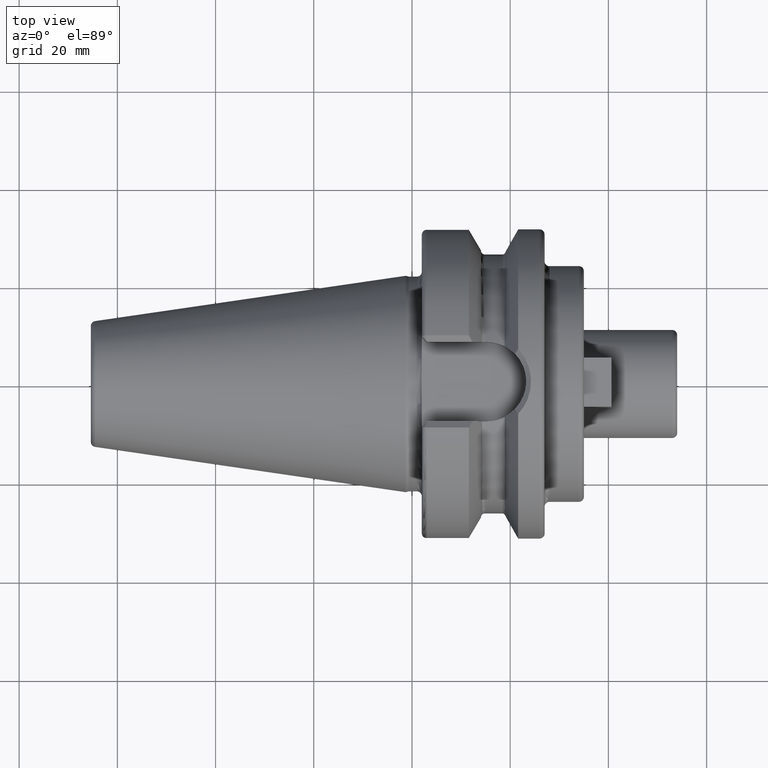
[diagram: clean part render]
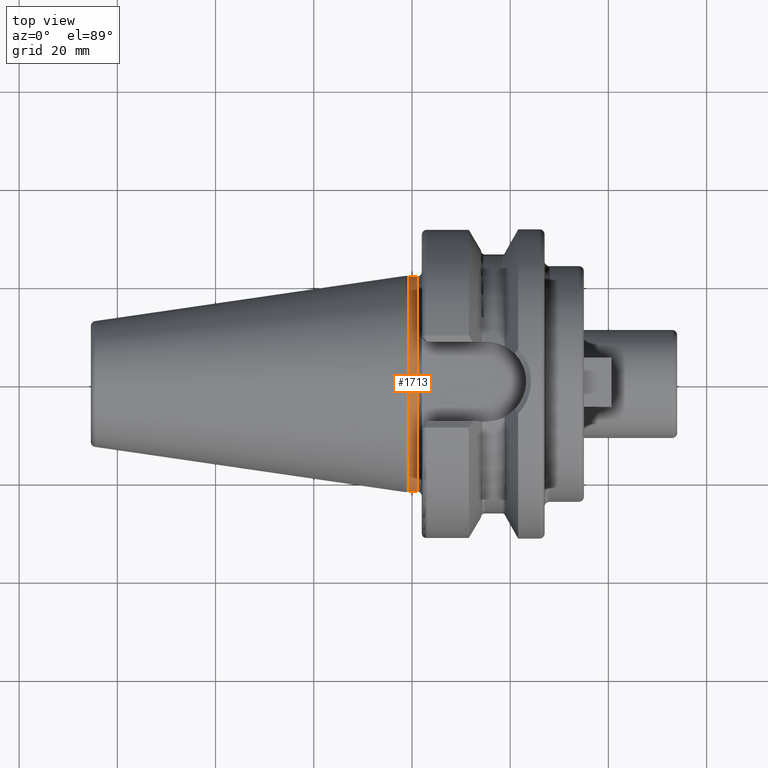
[diagram: same view with one face highlighted and labeled with its STEP entity id]
A machine part, top view. The second image highlights one B-rep face of the part: STEP entity #1713.
In plain terms, the highlighted cylindrical surface (partial cylindrical patch) has radius 21.875 mm, axis along (1, 0, 0).
Its self-contained STEP definition (entity closure, byte-faithful):
#73=CARTESIAN_POINT('',(-6.5E-1,0.E0,0.E0));
#74=DIRECTION('',(1.E0,0.E0,0.E0));
#75=DIRECTION('',(0.E0,1.E0,0.E0));
#76=AXIS2_PLACEMENT_3D('',#73,#74,#75);
#78=CARTESIAN_POINT('',(1.E0,0.E0,0.E0));
#79=DIRECTION('',(1.E0,0.E0,0.E0));
#80=DIRECTION('',(0.E0,1.E0,0.E0));
#81=AXIS2_PLACEMENT_3D('',#78,#79,#80);
#83=DIRECTION('',(-1.E0,0.E0,0.E0));
#84=VECTOR('',#83,1.65E0);
#85=CARTESIAN_POINT('',(1.E0,2.1875E1,0.E0));
#86=LINE('',#85,#84);
#87=DIRECTION('',(-1.E0,0.E0,0.E0));
#88=VECTOR('',#87,1.65E0);
#89=CARTESIAN_POINT('',(1.E0,-2.1875E1,0.E0));
#90=LINE('',#89,#88);
#1377=CARTESIAN_POINT('',(1.E0,2.1875E1,0.E0));
#1379=VERTEX_POINT('',#1377);
#1380=CARTESIAN_POINT('',(-6.5E-1,2.1875E1,0.E0));
#1381=VERTEX_POINT('',#1380);
#1383=CARTESIAN_POINT('',(1.E0,-2.1875E1,0.E0));
#1385=VERTEX_POINT('',#1383);
#1386=CARTESIAN_POINT('',(-6.5E-1,-2.1875E1,0.E0));
#1387=VERTEX_POINT('',#1386);
#1699=CARTESIAN_POINT('',(-7.002E1,0.E0,0.E0));
#1700=DIRECTION('',(1.E0,0.E0,0.E0));
#1701=DIRECTION('',(0.E0,-1.E0,0.E0));
#1702=AXIS2_PLACEMENT_3D('',#1699,#1700,#1701);
#1703=CYLINDRICAL_SURFACE('',#1702,2.1875E1);
#1705=ORIENTED_EDGE('',*,*,#1704,.F.);
#1707=ORIENTED_EDGE('',*,*,#1706,.T.);
#1709=ORIENTED_EDGE('',*,*,#1708,.T.);
#1710=ORIENTED_EDGE('',*,*,#1692,.F.);
#1711=EDGE_LOOP('',(#1705,#1707,#1709,#1710));
#1712=FACE_OUTER_BOUND('',#1711,.F.);
#1713=ADVANCED_FACE('',(#1712),#1703,.T.);
#77=CIRCLE('',#76,2.1875E1);
#82=CIRCLE('',#81,2.1875E1);
#1692=EDGE_CURVE('',#1381,#1387,#77,.T.);
#1704=EDGE_CURVE('',#1379,#1381,#86,.T.);
#1706=EDGE_CURVE('',#1379,#1385,#82,.T.);
#1708=EDGE_CURVE('',#1385,#1387,#90,.T.);